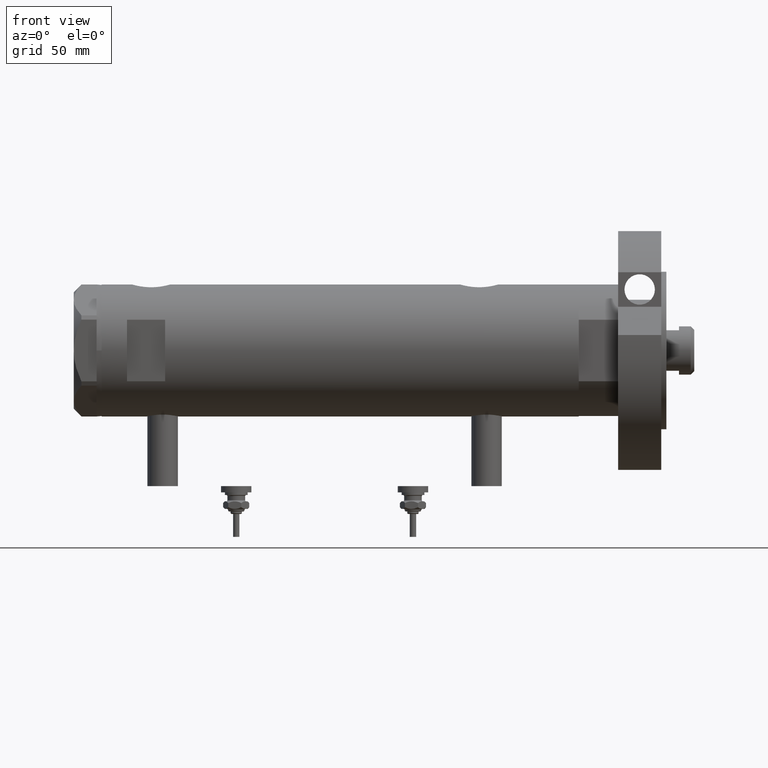
[diagram: clean part render]
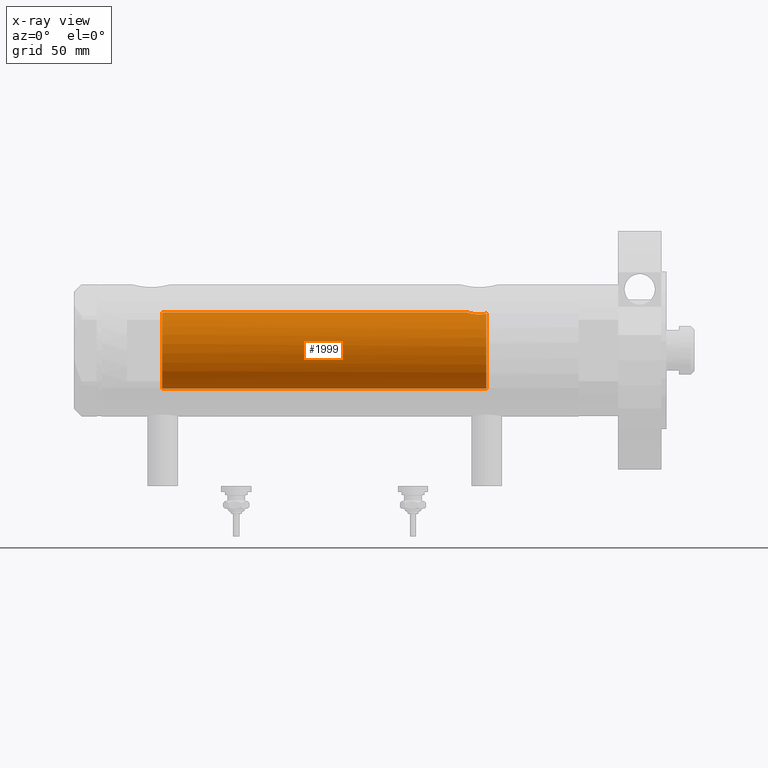
[diagram: x-ray — body ghosted, one internal face saturated and labeled with its STEP entity id]
A machine part, front view, then the same camera in x-ray: the body is ghosted and one INTERNAL B-rep face — a face not visible from any outside direction — is saturated and labeled: STEP entity #1999.
In plain terms, the highlighted cylindrical surface (partial cylindrical patch) has radius 15 mm, axis along (1, 0, -0).
Its self-contained STEP definition (entity closure, byte-faithful):
#286 = CARTESIAN_POINT ( 'NONE',  ( 14.42775250319760083, -4.105775281508734054, -57.36911445102909113 ) ) ;
#326 = CARTESIAN_POINT ( 'NONE',  ( 14.25856516724843992, -4.658255869285516937, -56.17044016644937443 ) ) ;
#488 = VECTOR ( 'NONE', #673, 1000.000000000000000 ) ;
#501 = DIRECTION ( 'NONE',  ( -0.000000000000000000, -0.000000000000000000, -1.000000000000000000 ) ) ;
#523 = CARTESIAN_POINT ( 'NONE',  ( 14.20926245015526135, -4.806160851464706063, -53.96377327795616452 ) ) ;
#637 = CARTESIAN_POINT ( 'NONE',  ( 15.00000000000000000, 0.000000000000000000, 69.58500000000000796 ) ) ;
#673 = DIRECTION ( 'NONE',  ( -0.000000000000000000, -0.000000000000000000, -1.000000000000000000 ) ) ;
#896 = CARTESIAN_POINT ( 'NONE',  ( 14.46277203719950855, -3.978470183374506863, -57.55000000000000426 ) ) ;
#967 = VERTEX_POINT ( 'NONE', #1105 ) ;
#972 = CARTESIAN_POINT ( 'NONE',  ( 14.49994286062941562, -3.853373987417223479, -51.74743896782911889 ) ) ;
#1014 = CARTESIAN_POINT ( 'NONE',  ( 14.19858338301463441, -4.837406781463696070, -54.18614104090499239 ) ) ;
#1105 = CARTESIAN_POINT ( 'NONE',  ( -15.00000000000000000, 0.000000000000000000, 70.15000000000000568 ) ) ;
#1193 = CIRCLE ( 'NONE', #2493, 15.00000000000000000 ) ;
#1223 = AXIS2_PLACEMENT_3D ( 'NONE', #2683, #6787, #6271 ) ;
#1276 = DIRECTION ( 'NONE',  ( -1.000000000000000000, 0.000000000000000000, 0.000000000000000000 ) ) ;
#1325 = EDGE_LOOP ( 'NONE', ( #4147, #2951, #7326, #3253, #6287, #7041 ) ) ;
#1576 = CARTESIAN_POINT ( 'NONE',  ( 14.72015646623405871, -2.909233045280601893, -50.82572079632731743 ) ) ;
#1616 = CARTESIAN_POINT ( 'NONE',  ( 14.19797987272029438, -4.839174951492910104, -55.29741451501411831 ) ) ;
#1658 = CARTESIAN_POINT ( 'NONE',  ( 14.42796883436190214, -4.108435602805831088, -52.10726922759030799 ) ) ;
#1728 = EDGE_CURVE ( 'NONE', #7633, #6375, #1193, .T. ) ;
#1999 = ADVANCED_FACE ( 'NONE', ( #7183 ), #4678, .F. ) ;
#2219 = CARTESIAN_POINT ( 'NONE',  ( 14.33594561531104006, -4.414979644548145288, -52.69453393419243525 ) ) ;
#2261 = CARTESIAN_POINT ( 'NONE',  ( 14.30772250772359833, -4.505024017690383076, -52.90010806953220879 ) ) ;
#2311 = EDGE_CURVE ( 'NONE', #7633, #3329, #2576, .T. ) ;
#2493 = AXIS2_PLACEMENT_3D ( 'NONE', #6759, #2955, #1276 ) ;
#2544 = CARTESIAN_POINT ( 'NONE',  ( 14.93900636919599556, -1.364886281976674942, 69.77622504971313333 ) ) ;
#2550 = VERTEX_POINT ( 'NONE', #5575 ) ;
#2576 = B_SPLINE_CURVE_WITH_KNOTS ( 'NONE', 3,
 ( #896, #286, #5112, #5226, #5853, #326, #5274, #6898, #1616, #2843, #6502, #1014, #523, #5313, #7089, #2261, #2219, #1658, #972, #6544, #1576, #5387, #7166, #3497, #3005, #6613, #7688, #4700, #4139, #4102 ),
 .UNSPECIFIED., .F., .F.,
 ( 4, 2, 2, 2, 2, 2, 2, 2, 2, 2, 2, 2, 2, 2, 4 ),
 ( 0.004672505804584289359, 0.005337629501999303222, 0.006002753199414317953, 0.006667876896829330949, 0.007333000594244345680, 0.007998124291659358676, 0.008663247989074373406, 0.009328371686489388137, 0.009993495383904402868, 0.01132374277873441151, 0.01265399017356442016, 0.01331911387097942448, 0.01398423756839442880, 0.01464936126580943312, 0.01531448496322443745 ),
 .UNSPECIFIED. ) ;
#2683 = CARTESIAN_POINT ( 'NONE',  ( 0.000000000000000000, 0.000000000000000000, 70.15000000000000568 ) ) ;
#2843 = CARTESIAN_POINT ( 'NONE',  ( 14.18781489734108270, -4.868896704194245473, -54.85545969036063241 ) ) ;
#2951 = ORIENTED_EDGE ( 'NONE', *, *, #5031, .T. ) ;
#2955 = DIRECTION ( 'NONE',  ( 0.000000000000000000, 0.000000000000000000, -1.000000000000000000 ) ) ;
#2987 = CARTESIAN_POINT ( 'NONE',  ( 15.00000000000000000, 5.959273468635536151E-16, -49.88499999999999801 ) ) ;
#3005 = CARTESIAN_POINT ( 'NONE',  ( 14.92307637240703677, -1.532123959568890026, -50.12726557582075770 ) ) ;
#3120 = CARTESIAN_POINT ( 'NONE',  ( 15.00000000000000178, -0.3999014018875933218, 69.58499999999999375 ) ) ;
#3253 = ORIENTED_EDGE ( 'NONE', *, *, #1728, .T. ) ;
#3329 = VERTEX_POINT ( 'NONE', #2987 ) ;
#3475 = DIRECTION ( 'NONE',  ( -0.000000000000000000, -0.000000000000000000, -1.000000000000000000 ) ) ;
#3497 = CARTESIAN_POINT ( 'NONE',  ( 14.90017778876744892, -1.739641523727902372, -50.20130925695124802 ) ) ;
#3736 = CARTESIAN_POINT ( 'NONE',  ( 14.82638779339053947, -2.275571356824482638, 70.15000000000000568 ) ) ;
#3755 = CARTESIAN_POINT ( 'NONE',  ( 15.00000000000000000, 1.836970198721029589E-15, 93.95000000000001705 ) ) ;
#3857 = CARTESIAN_POINT ( 'NONE',  ( 14.92029983160078643, -1.555365312915180542, 69.83609703141415537 ) ) ;
#3909 = EDGE_CURVE ( 'NONE', #967, #4320, #5729, .T. ) ;
#3954 = VECTOR ( 'NONE', #501, 1000.000000000000000 ) ;
#4102 = CARTESIAN_POINT ( 'NONE',  ( 15.00000000000000000, 5.959273468635536151E-16, -49.88499999999999801 ) ) ;
#4139 = CARTESIAN_POINT ( 'NONE',  ( 15.00000000000000000, -0.2216692655473431750, -49.88499999999999091 ) ) ;
#4147 = ORIENTED_EDGE ( 'NONE', *, *, #7523, .F. ) ;
#4320 = VERTEX_POINT ( 'NONE', #3736 ) ;
#4501 = CARTESIAN_POINT ( 'NONE',  ( 14.87720562886504183, -1.924385875533404233, 69.97741675737690059 ) ) ;
#4636 = CARTESIAN_POINT ( 'NONE',  ( -15.00000000000000000, 0.000000000000000000, -57.55000000000000426 ) ) ;
#4678 = CYLINDRICAL_SURFACE ( 'NONE', #5589, 15.00000000000000000 ) ;
#4700 = CARTESIAN_POINT ( 'NONE',  ( 14.99508877558421993, -0.4434836953032583184, -49.90007684727662252 ) ) ;
#4713 = CARTESIAN_POINT ( 'NONE',  ( 14.85289483991917692, -2.102865829523694607, 70.05860377881609224 ) ) ;
#4872 = LINE ( 'NONE', #3755, #3954 ) ;
#4892 = CARTESIAN_POINT ( 'NONE',  ( -15.00000000000000000, 0.000000000000000000, 93.95000000000001705 ) ) ;
#4984 = B_SPLINE_CURVE_WITH_KNOTS ( 'NONE', 3,
 ( #637, #3120, #5568, #2544, #3857, #4501, #4713, #5240 ),
 .UNSPECIFIED., .F., .F.,
 ( 4, 2, 2, 4 ),
 ( 0.000000000000000000, 0.001182100180564259889, 0.001773150270846394604, 0.002364200361128529319 ),
 .UNSPECIFIED. ) ;
#5031 = EDGE_CURVE ( 'NONE', #2550, #3329, #4872, .T. ) ;
#5112 = CARTESIAN_POINT ( 'NONE',  ( 14.39424372609267877, -4.221002267729138779, -57.17893131093290293 ) ) ;
#5226 = CARTESIAN_POINT ( 'NONE',  ( 14.33349657381506681, -4.422893686125041413, -56.78827841538883803 ) ) ;
#5240 = CARTESIAN_POINT ( 'NONE',  ( 14.82638779339053947, -2.275571356824482638, 70.15000000000000568 ) ) ;
#5274 = CARTESIAN_POINT ( 'NONE',  ( 14.23846660849503465, -4.718934182878722794, -55.95401121469808459 ) ) ;
#5313 = CARTESIAN_POINT ( 'NONE',  ( 14.23984499268011028, -4.714778477509579346, -53.53008258614766390 ) ) ;
#5387 = CARTESIAN_POINT ( 'NONE',  ( 14.81710879718117546, -2.343063746046468054, -50.48067662538952050 ) ) ;
#5568 = CARTESIAN_POINT ( 'NONE',  ( 14.98404828787190901, -0.7909490205761857684, 69.63356230794191504 ) ) ;
#5575 = CARTESIAN_POINT ( 'NONE',  ( 15.00000000000000000, 0.000000000000000000, 69.58500000000000796 ) ) ;
#5589 = AXIS2_PLACEMENT_3D ( 'NONE', #7704, #3475, #7100 ) ;
#5729 = CIRCLE ( 'NONE', #1223, 15.00000000000000000 ) ;
#5853 = CARTESIAN_POINT ( 'NONE',  ( 14.30602371879161439, -4.510400617436904014, -56.58665028800271557 ) ) ;
#6167 = LINE ( 'NONE', #4892, #488 ) ;
#6271 = DIRECTION ( 'NONE',  ( 1.000000000000000000, 0.000000000000000000, 0.000000000000000000 ) ) ;
#6287 = ORIENTED_EDGE ( 'NONE', *, *, #7498, .F. ) ;
#6375 = VERTEX_POINT ( 'NONE', #4636 ) ;
#6502 = CARTESIAN_POINT ( 'NONE',  ( 14.18786347641749757, -4.868757996482117711, -54.63322300400292875 ) ) ;
#6544 = CARTESIAN_POINT ( 'NONE',  ( 14.64727859494137263, -3.248701865452407578, -51.10174013696655493 ) ) ;
#6554 = CARTESIAN_POINT ( 'NONE',  ( 14.46277203719950855, -3.978470183374506863, -57.55000000000000426 ) ) ;
#6613 = CARTESIAN_POINT ( 'NONE',  ( 14.96064712090283777, -1.106639041422191827, -50.00738179736369915 ) ) ;
#6759 = CARTESIAN_POINT ( 'NONE',  ( 0.000000000000000000, 0.000000000000000000, -57.55000000000000426 ) ) ;
#6787 = DIRECTION ( 'NONE',  ( 0.000000000000000000, 0.000000000000000000, 1.000000000000000000 ) ) ;
#6898 = CARTESIAN_POINT ( 'NONE',  ( 14.20819413761015504, -4.809312895991456394, -55.51713251522167525 ) ) ;
#7041 = ORIENTED_EDGE ( 'NONE', *, *, #3909, .T. ) ;
#7089 = CARTESIAN_POINT ( 'NONE',  ( 14.25977760983849052, -4.654557688538888627, -53.31736805897653397 ) ) ;
#7100 = DIRECTION ( 'NONE',  ( -1.000000000000000000, 0.000000000000000000, 0.000000000000000000 ) ) ;
#7166 = CARTESIAN_POINT ( 'NONE',  ( 14.84733308118440220, -2.144376633039216440, -50.37751912952715116 ) ) ;
#7183 = FACE_OUTER_BOUND ( 'NONE', #1325, .T. ) ;
#7326 = ORIENTED_EDGE ( 'NONE', *, *, #2311, .F. ) ;
#7498 = EDGE_CURVE ( 'NONE', #967, #6375, #6167, .T. ) ;
#7523 = EDGE_CURVE ( 'NONE', #2550, #4320, #4984, .T. ) ;
#7633 = VERTEX_POINT ( 'NONE', #6554 ) ;
#7688 = CARTESIAN_POINT ( 'NONE',  ( 14.97537530859971966, -0.8874117095427771496, -49.96137464055829014 ) ) ;
#7704 = CARTESIAN_POINT ( 'NONE',  ( 0.000000000000000000, 0.000000000000000000, 93.95000000000001705 ) ) ;